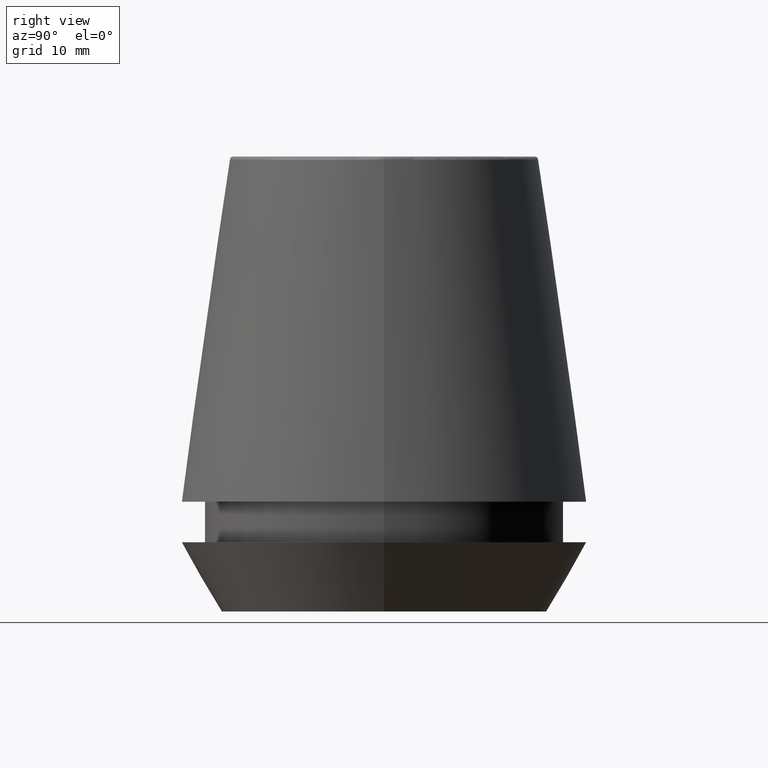
[diagram: clean part render]
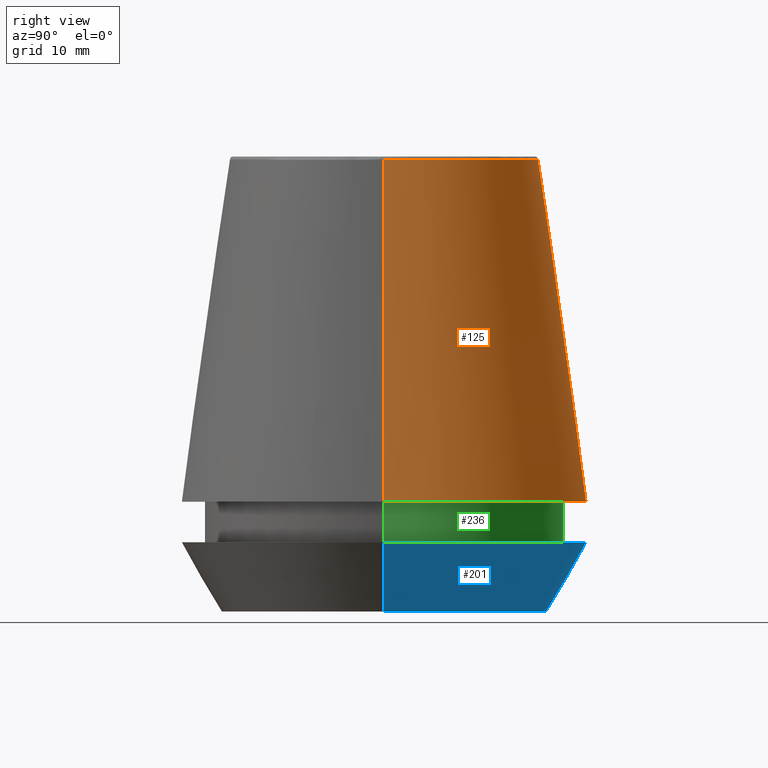
[diagram: same view with three faces highlighted in distinct colors, each labeled with its STEP entity id]
A machine part, right view with three faces highlighted in distinct colors.
Their STEP definitions:

[orange] entity #125 — the highlighted conical surface has half-angle 8 deg.
#2 = AXIS2_PLACEMENT_3D ( 'NONE', #301, #261, #293 ) ;
#11 = EDGE_CURVE ( 'NONE', #60, #381, #375, .T. ) ;
#16 = DIRECTION ( 'NONE',  ( 0.1391731009600587200, 1.704378926181473400E-017, -0.9902680687415712500 ) ) ;
#22 = CARTESIAN_POINT ( 'NONE',  ( 15.64384277279740400, 2.213191991290356800E-015, 45.65566924038402900 ) ) ;
#30 = ORIENTED_EDGE ( 'NONE', *, *, #248, .F. ) ;
#38 = DIRECTION ( 'NONE',  ( 0.0000000000000000000, 0.0000000000000000000, -1.000000000000000000 ) ) ;
#43 = DIRECTION ( 'NONE',  ( -0.0000000000000000000, -0.0000000000000000000, 1.000000000000000000 ) ) ;
#56 = ORIENTED_EDGE ( 'NONE', *, *, #154, .T. ) ;
#60 = VERTEX_POINT ( 'NONE', #128 ) ;
#62 = VECTOR ( 'NONE', #250, 1000.000000000000000 ) ;
#69 = CARTESIAN_POINT ( 'NONE',  ( 0.0000000000000000000, 0.0000000000000000000, 45.65566924038402900 ) ) ;
#74 = ORIENTED_EDGE ( 'NONE', *, *, #177, .T. ) ;
#88 = CARTESIAN_POINT ( 'NONE',  ( 20.50032537154048700, 2.510565784773633700E-015, 11.09999999999999800 ) ) ;
#119 = CARTESIAN_POINT ( 'NONE',  ( 20.50032537154048700, 2.510565784773633700E-015, 11.09999999999999800 ) ) ;
#125 = ADVANCED_FACE ( 'NONE', ( #385 ), #351, .T. ) ;
#128 = CARTESIAN_POINT ( 'NONE',  ( -15.64384277279740400, 0.0000000000000000000, 45.65566924038402900 ) ) ;
#131 = VERTEX_POINT ( 'NONE', #22 ) ;
#143 = AXIS2_PLACEMENT_3D ( 'NONE', #69, #43, #200 ) ;
#153 = ORIENTED_EDGE ( 'NONE', *, *, #11, .F. ) ;
#154 = EDGE_CURVE ( 'NONE', #346, #381, #335, .T. ) ;
#177 = EDGE_CURVE ( 'NONE', #131, #346, #334, .T. ) ;
#178 = EDGE_LOOP ( 'NONE', ( #30, #74, #56, #153 ) ) ;
#200 = DIRECTION ( 'NONE',  ( 1.000000000000000000, 0.0000000000000000000, 0.0000000000000000000 ) ) ;
#224 = DIRECTION ( 'NONE',  ( -1.000000000000000000, 0.0000000000000000000, 0.0000000000000000000 ) ) ;
#238 = CARTESIAN_POINT ( 'NONE',  ( 0.0000000000000000000, 0.0000000000000000000, 11.09999999999999800 ) ) ;
#248 = EDGE_CURVE ( 'NONE', #131, #60, #297, .T. ) ;
#250 = DIRECTION ( 'NONE',  ( -0.1391731009600587200, 0.0000000000000000000, -0.9902680687415712500 ) ) ;
#252 = CARTESIAN_POINT ( 'NONE',  ( -20.50032537154048700, 0.0000000000000000000, 11.09999999999999800 ) ) ;
#261 = DIRECTION ( 'NONE',  ( -0.0000000000000000000, -0.0000000000000000000, 1.000000000000000000 ) ) ;
#293 = DIRECTION ( 'NONE',  ( 1.000000000000000000, 0.0000000000000000000, 0.0000000000000000000 ) ) ;
#297 = CIRCLE ( 'NONE', #143, 15.64384277279740400 ) ;
#301 = CARTESIAN_POINT ( 'NONE',  ( 0.0000000000000000000, 0.0000000000000000000, 11.09999999999999800 ) ) ;
#325 = CARTESIAN_POINT ( 'NONE',  ( -20.50032537154048700, 0.0000000000000000000, 11.09999999999999800 ) ) ;
#330 = VECTOR ( 'NONE', #16, 1000.000000000000000 ) ;
#334 = LINE ( 'NONE', #119, #330 ) ;
#335 = CIRCLE ( 'NONE', #2, 20.50032537154048700 ) ;
#336 = AXIS2_PLACEMENT_3D ( 'NONE', #238, #38, #224 ) ;
#346 = VERTEX_POINT ( 'NONE', #88 ) ;
#351 = CONICAL_SURFACE ( 'NONE', #336, 20.50032537154048700, 0.1396263401595396200 ) ;
#375 = LINE ( 'NONE', #325, #62 ) ;
#381 = VERTEX_POINT ( 'NONE', #252 ) ;
#385 = FACE_OUTER_BOUND ( 'NONE', #178, .T. ) ;

[blue] entity #201 — the highlighted conical surface has half-angle 30 deg.
#12 = AXIS2_PLACEMENT_3D ( 'NONE', #46, #64, #51 ) ;
#13 = DIRECTION ( 'NONE',  ( -0.4999999999999941700, 6.123233995736694500E-017, 0.8660254037844420400 ) ) ;
#36 = CARTESIAN_POINT ( 'NONE',  ( 0.0000000000000000000, 0.0000000000000000000, 7.000000000000006200 ) ) ;
#41 = AXIS2_PLACEMENT_3D ( 'NONE', #169, #73, #196 ) ;
#46 = CARTESIAN_POINT ( 'NONE',  ( 0.0000000000000000000, 0.0000000000000000000, 0.0000000000000000000 ) ) ;
#51 = DIRECTION ( 'NONE',  ( 1.000000000000000000, 0.0000000000000000000, 0.0000000000000000000 ) ) ;
#52 = CARTESIAN_POINT ( 'NONE',  ( -16.45854811567268100, 2.263058382549599700E-015, 0.0000000000000000000 ) ) ;
#64 = DIRECTION ( 'NONE',  ( -0.0000000000000000000, -0.0000000000000000000, 1.000000000000000000 ) ) ;
#66 = CARTESIAN_POINT ( 'NONE',  ( -20.50000000000000000, 2.510525938252074100E-015, 7.000000000000006200 ) ) ;
#73 = DIRECTION ( 'NONE',  ( -0.0000000000000000000, -0.0000000000000000000, 1.000000000000000000 ) ) ;
#91 = ORIENTED_EDGE ( 'NONE', *, *, #311, .F. ) ;
#106 = ORIENTED_EDGE ( 'NONE', *, *, #159, .F. ) ;
#107 = EDGE_CURVE ( 'NONE', #111, #116, #364, .T. ) ;
#111 = VERTEX_POINT ( 'NONE', #258 ) ;
#116 = VERTEX_POINT ( 'NONE', #52 ) ;
#139 = EDGE_CURVE ( 'NONE', #116, #162, #369, .T. ) ;
#146 = CARTESIAN_POINT ( 'NONE',  ( -16.45854811567268100, 2.015590826847124800E-015, 0.0000000000000000000 ) ) ;
#151 = VERTEX_POINT ( 'NONE', #155 ) ;
#155 = CARTESIAN_POINT ( 'NONE',  ( 20.50000000000000000, 0.0000000000000000000, 7.000000000000006200 ) ) ;
#159 = EDGE_CURVE ( 'NONE', #151, #162, #349, .T. ) ;
#162 = VERTEX_POINT ( 'NONE', #66 ) ;
#169 = CARTESIAN_POINT ( 'NONE',  ( 0.0000000000000000000, 0.0000000000000000000, 0.0000000000000000000 ) ) ;
#173 = AXIS2_PLACEMENT_3D ( 'NONE', #36, #262, #218 ) ;
#196 = DIRECTION ( 'NONE',  ( 1.000000000000000000, 0.0000000000000000000, 0.0000000000000000000 ) ) ;
#197 = ORIENTED_EDGE ( 'NONE', *, *, #107, .T. ) ;
#201 = ADVANCED_FACE ( 'NONE', ( #324 ), #314, .T. ) ;
#218 = DIRECTION ( 'NONE',  ( 1.000000000000000000, 0.0000000000000000000, 0.0000000000000000000 ) ) ;
#231 = EDGE_LOOP ( 'NONE', ( #197, #342, #106, #91 ) ) ;
#237 = CARTESIAN_POINT ( 'NONE',  ( 16.45854811567268100, 0.0000000000000000000, 0.0000000000000000000 ) ) ;
#258 = CARTESIAN_POINT ( 'NONE',  ( 16.45854811567268100, 0.0000000000000000000, 0.0000000000000000000 ) ) ;
#262 = DIRECTION ( 'NONE',  ( -0.0000000000000000000, -0.0000000000000000000, 1.000000000000000000 ) ) ;
#288 = DIRECTION ( 'NONE',  ( 0.4999999999999941700, 0.0000000000000000000, 0.8660254037844420400 ) ) ;
#304 = VECTOR ( 'NONE', #288, 1000.000000000000000 ) ;
#311 = EDGE_CURVE ( 'NONE', #111, #151, #319, .T. ) ;
#314 = CONICAL_SURFACE ( 'NONE', #41, 16.45854811567268100, 0.5235987755982921500 ) ;
#319 = LINE ( 'NONE', #237, #304 ) ;
#324 = FACE_OUTER_BOUND ( 'NONE', #231, .T. ) ;
#342 = ORIENTED_EDGE ( 'NONE', *, *, #139, .T. ) ;
#349 = CIRCLE ( 'NONE', #173, 20.50000000000000000 ) ;
#364 = CIRCLE ( 'NONE', #12, 16.45854811567268100 ) ;
#368 = VECTOR ( 'NONE', #13, 1000.000000000000000 ) ;
#369 = LINE ( 'NONE', #146, #368 ) ;

[green] entity #236 — the highlighted cylindrical surface (partial cylindrical patch) has radius 18.1 mm, axis along (-0, -0, 1).
#9 = DIRECTION ( 'NONE',  ( -0.0000000000000000000, -0.0000000000000000000, 1.000000000000000000 ) ) ;
#15 = EDGE_CURVE ( 'NONE', #210, #272, #45, .T. ) ;
#21 = CARTESIAN_POINT ( 'NONE',  ( 18.10000000000000500, 0.0000000000000000000, 11.09999999999999800 ) ) ;
#28 = ORIENTED_EDGE ( 'NONE', *, *, #15, .F. ) ;
#45 = CIRCLE ( 'NONE', #386, 18.10000000000000500 ) ;
#50 = EDGE_CURVE ( 'NONE', #199, #272, #290, .T. ) ;
#53 = VERTEX_POINT ( 'NONE', #382 ) ;
#55 = AXIS2_PLACEMENT_3D ( 'NONE', #71, #230, #267 ) ;
#57 = ORIENTED_EDGE ( 'NONE', *, *, #142, .F. ) ;
#71 = CARTESIAN_POINT ( 'NONE',  ( 0.0000000000000000000, 0.0000000000000000000, 46.00000000000000000 ) ) ;
#84 = CARTESIAN_POINT ( 'NONE',  ( 0.0000000000000000000, 0.0000000000000000000, 11.09999999999999800 ) ) ;
#95 = CARTESIAN_POINT ( 'NONE',  ( -18.10000000000000500, 2.216610706456710000E-015, 11.09999999999999800 ) ) ;
#115 = DIRECTION ( 'NONE',  ( 1.000000000000000000, 0.0000000000000000000, 0.0000000000000000000 ) ) ;
#117 = DIRECTION ( 'NONE',  ( -0.0000000000000000000, -0.0000000000000000000, 1.000000000000000000 ) ) ;
#123 = CARTESIAN_POINT ( 'NONE',  ( 18.10000000000000500, 0.0000000000000000000, 46.00000000000000000 ) ) ;
#137 = CARTESIAN_POINT ( 'NONE',  ( 0.0000000000000000000, 0.0000000000000000000, 6.999999999999999100 ) ) ;
#141 = CARTESIAN_POINT ( 'NONE',  ( -18.10000000000000100, 2.216610706456709600E-015, 6.999999999999999100 ) ) ;
#142 = EDGE_CURVE ( 'NONE', #53, #210, #355, .T. ) ;
#149 = DIRECTION ( 'NONE',  ( -0.0000000000000000000, -0.0000000000000000000, 1.000000000000000000 ) ) ;
#164 = CARTESIAN_POINT ( 'NONE',  ( -18.10000000000000500, 2.216610706456710000E-015, 46.00000000000000000 ) ) ;
#180 = ORIENTED_EDGE ( 'NONE', *, *, #50, .T. ) ;
#182 = DIRECTION ( 'NONE',  ( 1.000000000000000000, 0.0000000000000000000, 0.0000000000000000000 ) ) ;
#199 = VERTEX_POINT ( 'NONE', #141 ) ;
#210 = VERTEX_POINT ( 'NONE', #21 ) ;
#216 = AXIS2_PLACEMENT_3D ( 'NONE', #137, #321, #115 ) ;
#230 = DIRECTION ( 'NONE',  ( -0.0000000000000000000, -0.0000000000000000000, 1.000000000000000000 ) ) ;
#236 = ADVANCED_FACE ( 'NONE', ( #315 ), #299, .T. ) ;
#257 = VECTOR ( 'NONE', #149, 1000.000000000000000 ) ;
#267 = DIRECTION ( 'NONE',  ( 1.000000000000000000, 0.0000000000000000000, 0.0000000000000000000 ) ) ;
#272 = VERTEX_POINT ( 'NONE', #95 ) ;
#290 = LINE ( 'NONE', #164, #257 ) ;
#299 = CYLINDRICAL_SURFACE ( 'NONE', #55, 18.10000000000000500 ) ;
#303 = EDGE_LOOP ( 'NONE', ( #383, #180, #28, #57 ) ) ;
#306 = CIRCLE ( 'NONE', #216, 18.10000000000000100 ) ;
#315 = FACE_OUTER_BOUND ( 'NONE', #303, .T. ) ;
#321 = DIRECTION ( 'NONE',  ( -0.0000000000000000000, -0.0000000000000000000, 1.000000000000000000 ) ) ;
#326 = EDGE_CURVE ( 'NONE', #53, #199, #306, .T. ) ;
#348 = VECTOR ( 'NONE', #117, 1000.000000000000000 ) ;
#355 = LINE ( 'NONE', #123, #348 ) ;
#382 = CARTESIAN_POINT ( 'NONE',  ( 18.10000000000000100, 0.0000000000000000000, 6.999999999999999100 ) ) ;
#383 = ORIENTED_EDGE ( 'NONE', *, *, #326, .T. ) ;
#386 = AXIS2_PLACEMENT_3D ( 'NONE', #84, #9, #182 ) ;